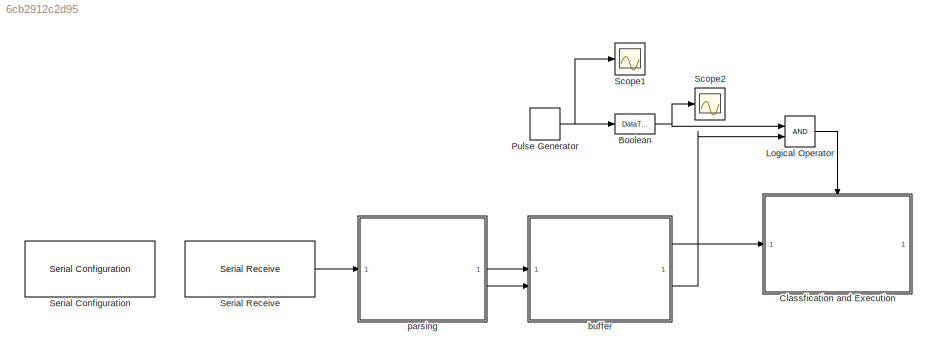
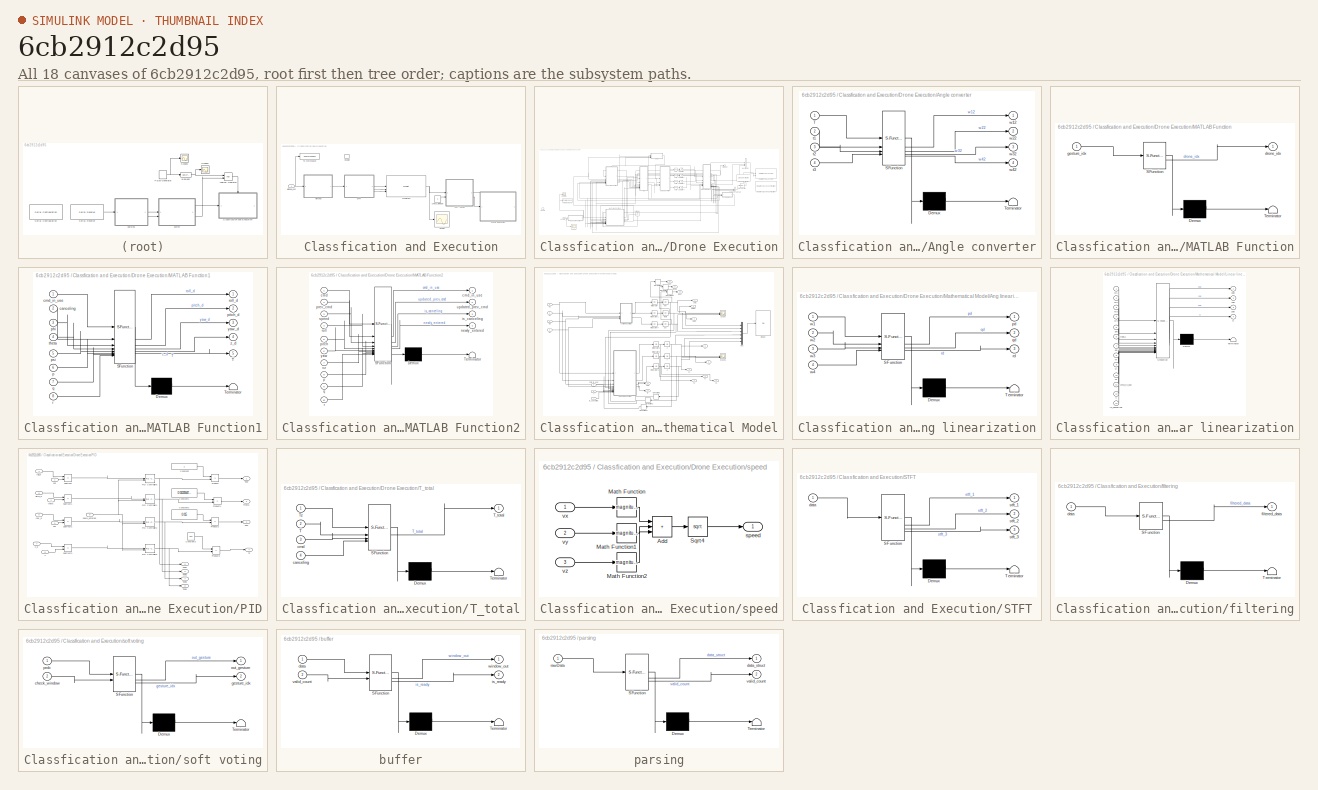
[diagram: thumbnail index - all 18 canvases of the model, root first then tree order]
MODEL slx_6cb2912c2d95
KIND model
CONFIG AbsTol = auto
CONFIG EnableMultiTasking = off
CONFIG FixedStep = 0.001
CONFIG MaxStep = auto
CONFIG MinStep = auto
CONFIG RelTol = 1e-3
CONFIG SampleTimeConstraint = Unconstrained
CONFIG SolverName = FixedStepAuto
CONFIG StartTime = 0.0
CONFIG StopTime = inf
BLOCK [DataTypeConversion] Boolean
  NameLocation = top
  OutDataTypeStr = boolean
  RndMeth = Floor
  SaturateOnIntegerOverflow = off
BLOCK [SubSystem] Classfication and Execution
  TreatAsAtomicUnit = on
BLOCK [SubSystem] Classfication and Execution/Drone Execution
  TreatAsAtomicUnit = on
BLOCK [SubSystem] Classfication and Execution/Drone Execution/Angle converter
  ErrorFcn = Stateflow.Translate.translate
  PermitHierarchicalResolution = ExplicitOnly
  SFBlockType = MATLAB Function
  TreatAsAtomicUnit = on
BLOCK [Demux] Classfication and Execution/Drone Execution/Angle converter/ Demux 
  Outputs = 1
BLOCK [S-Function] Classfication and Execution/Drone Execution/Angle converter/ SFunction 
  EnableBusSupport = off
  FunctionName = sf_sfun
  PortCounts = [4 5]
  SFcnIsStateOwnerBlock = off
  SFunctionDeploymentMode = off
  Tag = Stateflow S-Function 7
BLOCK [Terminator] Classfication and Execution/Drone Execution/Angle converter/ Terminator 
BLOCK [Inport] Classfication and Execution/Drone Execution/Angle converter/T
BLOCK [Inport] Classfication and Execution/Drone Execution/Angle converter/t1
  Port = 2
BLOCK [Inport] Classfication and Execution/Drone Execution/Angle converter/t2
  Port = 3
BLOCK [Inport] Classfication and Execution/Drone Execution/Angle converter/t3
  Port = 4
BLOCK [Outport] Classfication and Execution/Drone Execution/Angle converter/w12
BLOCK [Outport] Classfication and Execution/Drone Execution/Angle converter/w22
  Port = 2
BLOCK [Outport] Classfication and Execution/Drone Execution/Angle converter/w32
  Port = 3
BLOCK [Outport] Classfication and Execution/Drone Execution/Angle converter/w42
  Port = 4
BLOCK [BusCreator] Classfication and Execution/Drone Execution/Bus Creator
  DisplayOption = bar
  InheritFromInputs = on
  Inputs = 3
BLOCK [EnablePort] Classfication and Execution/Drone Execution/Enable
BLOCK [SubSystem] Classfication and Execution/Drone Execution/MATLAB Function
  ErrorFcn = Stateflow.Translate.translate
  PermitHierarchicalResolution = ExplicitOnly
  SFBlockType = MATLAB Function
  TreatAsAtomicUnit = on
BLOCK [Demux] Classfication and Execution/Drone Execution/MATLAB Function/ Demux 
  Outputs = 1
BLOCK [S-Function] Classfication and Execution/Drone Execution/MATLAB Function/ SFunction 
  EnableBusSupport = off
  FunctionName = sf_sfun
  PortCounts = [1 2]
  SFcnIsStateOwnerBlock = off
  SFunctionDeploymentMode = off
  Tag = Stateflow S-Function 8
BLOCK [Terminator] Classfication and Execution/Drone Execution/MATLAB Function/ Terminator 
BLOCK [Outport] Classfication and Execution/Drone Execution/MATLAB Function/drone_idx
BLOCK [Inport] Classfication and Execution/Drone Execution/MATLAB Function/gesture_idx
BLOCK [SubSystem] Classfication and Execution/Drone Execution/MATLAB Function1
  ErrorFcn = Stateflow.Translate.translate
  PermitHierarchicalResolution = ExplicitOnly
  SFBlockType = MATLAB Function
  TreatAsAtomicUnit = on
BLOCK [Demux] Classfication and Execution/Drone Execution/MATLAB Function1/ Demux 
  Outputs = 1
BLOCK [S-Function] Classfication and Execution/Drone Execution/MATLAB Function1/ SFunction 
  EnableBusSupport = off
  FunctionName = sf_sfun
  PortCounts = [8 6]
  SFcnIsStateOwnerBlock = off
  SFunctionDeploymentMode = off
  Tag = Stateflow S-Function 9
BLOCK [Terminator] Classfication and Execution/Drone Execution/MATLAB Function1/ Terminator 
BLOCK [Outport] Classfication and Execution/Drone Execution/MATLAB Function1/T
  Port = 5
BLOCK [Inport] Classfication and Execution/Drone Execution/MATLAB Function1/canceling
  Port = 2
BLOCK [Inport] Classfication and Execution/Drone Execution/MATLAB Function1/cmd_in_use
BLOCK [Inport] Classfication and Execution/Drone Execution/MATLAB Function1/p
  Port = 6
BLOCK [Inport] Classfication and Execution/Drone Execution/MATLAB Function1/phi
  Port = 3
BLOCK [Outport] Classfication and Execution/Drone Execution/MATLAB Function1/pitch_d
  Port = 2
BLOCK [Inport] Classfication and Execution/Drone Execution/MATLAB Function1/psi
  Port = 5
BLOCK [Inport] Classfication and Execution/Drone Execution/MATLAB Function1/q
  Port = 7
BLOCK [Inport] Classfication and Execution/Drone Execution/MATLAB Function1/r
  Port = 8
BLOCK [Outport] Classfication and Execution/Drone Execution/MATLAB Function1/roll_d
BLOCK [Inport] Classfication and Execution/Drone Execution/MATLAB Function1/theta
  Port = 4
BLOCK [Outport] Classfication and Execution/Drone Execution/MATLAB Function1/yaw_d
  Port = 3
BLOCK [Outport] Classfication and Execution/Drone Execution/MATLAB Function1/z_d
  Port = 4
BLOCK [SubSystem] Classfication and Execution/Drone Execution/MATLAB Function2
  ErrorFcn = Stateflow.Translate.translate
  PermitHierarchicalResolution = ExplicitOnly
  SFBlockType = MATLAB Function
  TreatAsAtomicUnit = on
BLOCK [Demux] Classfication and Execution/Drone Execution/MATLAB Function2/ Demux 
  Outputs = 1
BLOCK [S-Function] Classfication and Execution/Drone Execution/MATLAB Function2/ SFunction 
  EnableBusSupport = off
  FunctionName = sf_sfun
  PortCounts = [10 5]
  SFcnIsStateOwnerBlock = off
  SFunctionDeploymentMode = off
  Tag = Stateflow S-Function 10
BLOCK [Terminator] Classfication and Execution/Drone Execution/MATLAB Function2/ Terminator 
BLOCK [Inport] Classfication and Execution/Drone Execution/MATLAB Function2/cmd
BLOCK [Outport] Classfication and Execution/Drone Execution/MATLAB Function2/cmd_in_use
BLOCK [Outport] Classfication and Execution/Drone Execution/MATLAB Function2/is_canceling
  Port = 3
BLOCK [Outport] Classfication and Execution/Drone Execution/MATLAB Function2/newly_entered
  Port = 4
BLOCK [Inport] Classfication and Execution/Drone Execution/MATLAB Function2/p
  Port = 8
BLOCK [Inport] Classfication and Execution/Drone Execution/MATLAB Function2/pitch
  Port = 5
BLOCK [Inport] Classfication and Execution/Drone Execution/MATLAB Function2/prev_cmd
  Port = 2
BLOCK [Inport] Classfication and Execution/Drone Execution/MATLAB Function2/q
  Port = 9
BLOCK [Inport] Classfication and Execution/Drone Execution/MATLAB Function2/r
  Port = 10
BLOCK [Inport] Classfication and Execution/Drone Execution/MATLAB Function2/roll
  Port = 4
BLOCK [Inport] Classfication and Execution/Drone Execution/MATLAB Function2/speed
  Port = 3
BLOCK [Outport] Classfication and Execution/Drone Execution/MATLAB Function2/updated_prev_cmd
  Port = 2
BLOCK [Inport] Classfication and Execution/Drone Execution/MATLAB Function2/vz
  Port = 7
BLOCK [Inport] Classfication and Execution/Drone Execution/MATLAB Function2/yaw
  Port = 6
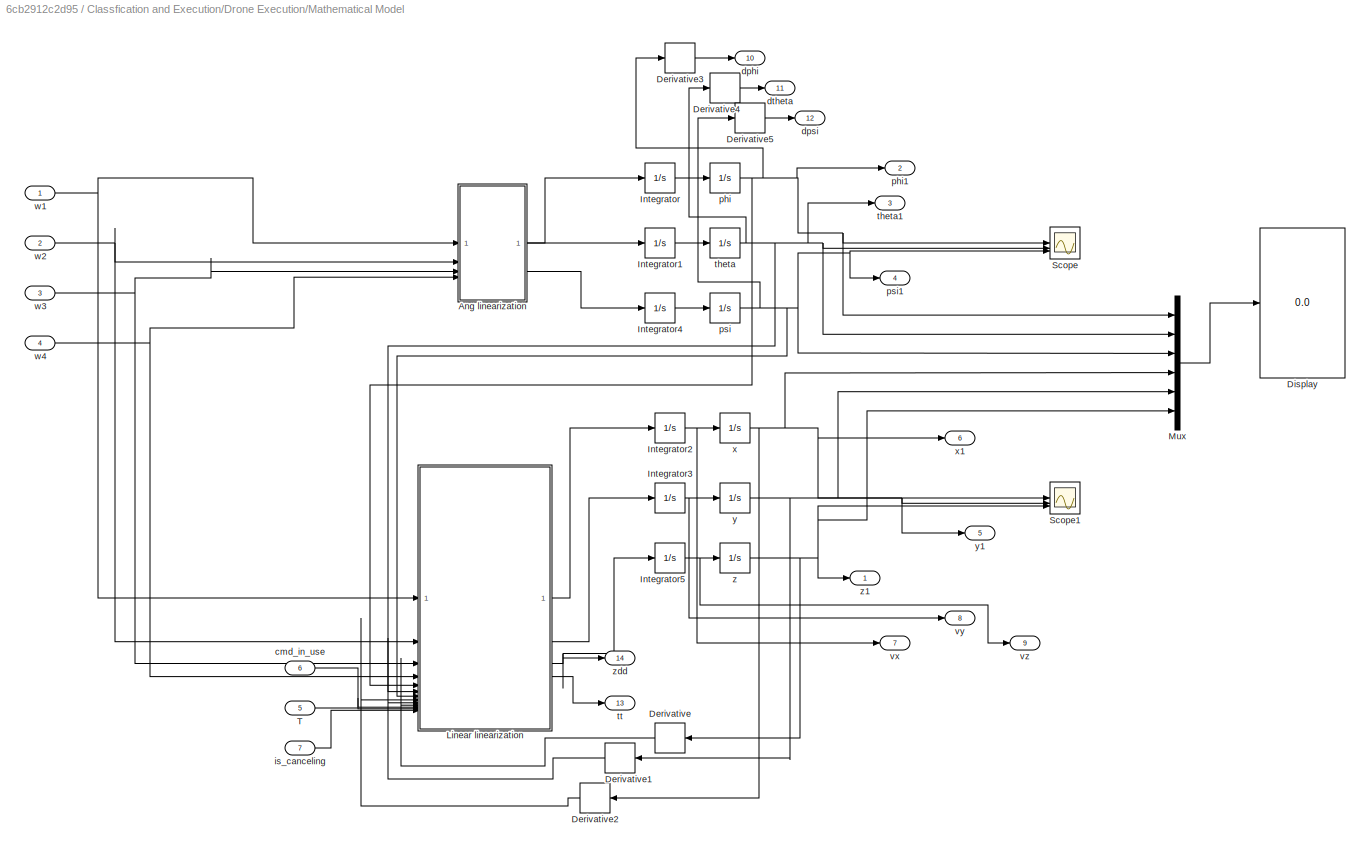
BLOCK [SubSystem] Classfication and Execution/Drone Execution/Mathematical Model
BLOCK [SubSystem] Classfication and Execution/Drone Execution/Mathematical Model/Ang linearization
  ErrorFcn = Stateflow.Translate.translate
  PermitHierarchicalResolution = ExplicitOnly
  SFBlockType = MATLAB Function
  TreatAsAtomicUnit = on
BLOCK [Demux] Classfication and Execution/Drone Execution/Mathematical Model/Ang linearization/ Demux 
  Outputs = 1
BLOCK [S-Function] Classfication and Execution/Drone Execution/Mathematical Model/Ang linearization/ SFunction 
  EnableBusSupport = off
  FunctionName = sf_sfun
  PortCounts = [4 4]
  SFcnIsStateOwnerBlock = off
  SFunctionDeploymentMode = off
  Tag = Stateflow S-Function 13
BLOCK [Terminator] Classfication and Execution/Drone Execution/Mathematical Model/Ang linearization/ Terminator 
BLOCK [Outport] Classfication and Execution/Drone Execution/Mathematical Model/Ang linearization/pd
BLOCK [Outport] Classfication and Execution/Drone Execution/Mathematical Model/Ang linearization/qd
  Port = 2
BLOCK [Outport] Classfication and Execution/Drone Execution/Mathematical Model/Ang linearization/rd
  Port = 3
BLOCK [Inport] Classfication and Execution/Drone Execution/Mathematical Model/Ang linearization/w1
BLOCK [Inport] Classfication and Execution/Drone Execution/Mathematical Model/Ang linearization/w2
  Port = 2
BLOCK [Inport] Classfication and Execution/Drone Execution/Mathematical Model/Ang linearization/w3
  Port = 3
BLOCK [Inport] Classfication and Execution/Drone Execution/Mathematical Model/Ang linearization/w4
  Port = 4
BLOCK [Derivative] Classfication and Execution/Drone Execution/Mathematical Model/Derivative
  CoefficientInTFapproximation = 0.01
BLOCK [Derivative] Classfication and Execution/Drone Execution/Mathematical Model/Derivative1
  CoefficientInTFapproximation = 0.01
BLOCK [Derivative] Classfication and Execution/Drone Execution/Mathematical Model/Derivative2
  CoefficientInTFapproximation = 0.01
BLOCK [Derivative] Classfication and Execution/Drone Execution/Mathematical Model/Derivative3
BLOCK [Derivative] Classfication and Execution/Drone Execution/Mathematical Model/Derivative4
BLOCK [Derivative] Classfication and Execution/Drone Execution/Mathematical Model/Derivative5
BLOCK [Display] Classfication and Execution/Drone Execution/Mathematical Model/Display
  Decimation = 1
BLOCK [Integrator] Classfication and Execution/Drone Execution/Mathematical Model/Integrator
BLOCK [Integrator] Classfication and Execution/Drone Execution/Mathematical Model/Integrator1
BLOCK [Integrator] Classfication and Execution/Drone Execution/Mathematical Model/Integrator2
BLOCK [Integrator] Classfication and Execution/Drone Execution/Mathematical Model/Integrator3
BLOCK [Integrator] Classfication and Execution/Drone Execution/Mathematical Model/Integrator4
BLOCK [Integrator] Classfication and Execution/Drone Execution/Mathematical Model/Integrator5
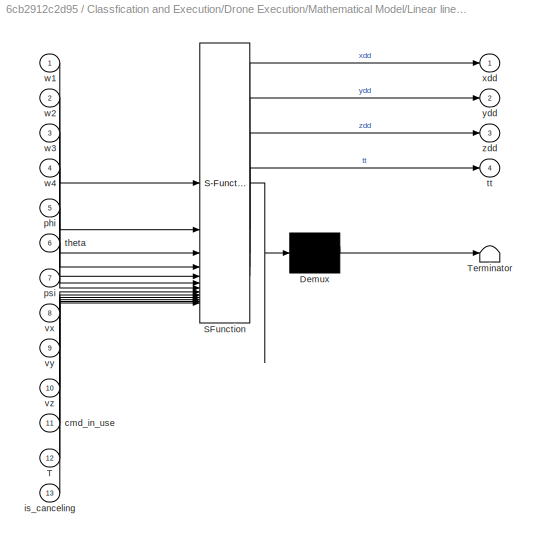
BLOCK [SubSystem] Classfication and Execution/Drone Execution/Mathematical Model/Linear linearization
  ErrorFcn = Stateflow.Translate.translate
  PermitHierarchicalResolution = ExplicitOnly
  SFBlockType = MATLAB Function
  TreatAsAtomicUnit = on
BLOCK [Demux] Classfication and Execution/Drone Execution/Mathematical Model/Linear linearization/ Demux 
  Outputs = 1
BLOCK [S-Function] Classfication and Execution/Drone Execution/Mathematical Model/Linear linearization/ SFunction 
  EnableBusSupport = off
  FunctionName = sf_sfun
  PortCounts = [13 5]
  SFcnIsStateOwnerBlock = off
  SFunctionDeploymentMode = off
  Tag = Stateflow S-Function 14
BLOCK [Terminator] Classfication and Execution/Drone Execution/Mathematical Model/Linear linearization/ Terminator 
BLOCK [Inport] Classfication and Execution/Drone Execution/Mathematical Model/Linear linearization/T
  Port = 12
BLOCK [Inport] Classfication and Execution/Drone Execution/Mathematical Model/Linear linearization/cmd_in_use
  Port = 11
BLOCK [Inport] Classfication and Execution/Drone Execution/Mathematical Model/Linear linearization/is_canceling
  Port = 13
BLOCK [Inport] Classfication and Execution/Drone Execution/Mathematical Model/Linear linearization/phi
  Port = 5
BLOCK [Inport] Classfication and Execution/Drone Execution/Mathematical Model/Linear linearization/psi
  Port = 7
BLOCK [Inport] Classfication and Execution/Drone Execution/Mathematical Model/Linear linearization/theta
  Port = 6
BLOCK [Outport] Classfication and Execution/Drone Execution/Mathematical Model/Linear linearization/tt
  Port = 4
BLOCK [Inport] Classfication and Execution/Drone Execution/Mathematical Model/Linear linearization/vx
  Port = 8
BLOCK [Inport] Classfication and Execution/Drone Execution/Mathematical Model/Linear linearization/vy
  Port = 9
BLOCK [Inport] Classfication and Execution/Drone Execution/Mathematical Model/Linear linearization/vz
  Port = 10
BLOCK [Inport] Classfication and Execution/Drone Execution/Mathematical Model/Linear linearization/w1
BLOCK [Inport] Classfication and Execution/Drone Execution/Mathematical Model/Linear linearization/w2
  Port = 2
BLOCK [Inport] Classfication and Execution/Drone Execution/Mathematical Model/Linear linearization/w3
  Port = 3
BLOCK [Inport] Classfication and Execution/Drone Execution/Mathematical Model/Linear linearization/w4
  Port = 4
BLOCK [Outport] Classfication and Execution/Drone Execution/Mathematical Model/Linear linearization/xdd
BLOCK [Outport] Classfication and Execution/Drone Execution/Mathematical Model/Linear linearization/ydd
  Port = 2
BLOCK [Outport] Classfication and Execution/Drone Execution/Mathematical Model/Linear linearization/zdd
  Port = 3
BLOCK [Mux] Classfication and Execution/Drone Execution/Mathematical Model/Mux
  DisplayOption = bar
  Inputs = 6
BLOCK [Scope] Classfication and Execution/Drone Execution/Mathematical Model/Scope
  Floating = off
  NumInputPorts = 3
  ScopeSpecificationString = Simulink.scopes.TimeScopeBlockCfg('CurrentConfiguration', extmgr.ConfigurationSet(extmgr.Configuration('Core','General UI',true,'DisplayFullSourceName',false,'ShowMainToolbar',true),extmgr.Configuration('Sources','WiredSimulink',true,'DataLogging',false,'DataLoggingVariableName','ScopeData','DataLoggingLimitDataPoints',false,'DataLoggingMaxPoints','5000','DataLoggingDecimateData',false,'DataLoggin...<+1981ch>
BLOCK [Scope] Classfication and Execution/Drone Execution/Mathematical Model/Scope1
  Floating = off
  NumInputPorts = 3
  ScopeSpecificationString = Simulink.scopes.TimeScopeBlockCfg('CurrentConfiguration', extmgr.ConfigurationSet(extmgr.Configuration('Core','General UI',true,'DisplayFullSourceName',false,'ShowMainToolbar',true),extmgr.Configuration('Sources','WiredSimulink',true,'DataLogging',false,'DataLoggingVariableName','ScopeData1','DataLoggingLimitDataPoints',false,'DataLoggingMaxPoints','5000','DataLoggingDecimateData',false,'DataLoggi...<+2028ch>
BLOCK [Inport] Classfication and Execution/Drone Execution/Mathematical Model/T
  Port = 5
BLOCK [Inport] Classfication and Execution/Drone Execution/Mathematical Model/cmd_in_use
  Port = 6
BLOCK [Outport] Classfication and Execution/Drone Execution/Mathematical Model/dphi
  Port = 10
BLOCK [Outport] Classfication and Execution/Drone Execution/Mathematical Model/dpsi
  Port = 12
BLOCK [Outport] Classfication and Execution/Drone Execution/Mathematical Model/dtheta
  Port = 11
BLOCK [Inport] Classfication and Execution/Drone Execution/Mathematical Model/is_canceling
  Port = 7
BLOCK [Integrator] Classfication and Execution/Drone Execution/Mathematical Model/phi
BLOCK [Outport] Classfication and Execution/Drone Execution/Mathematical Model/phi1
  Port = 2
BLOCK [Integrator] Classfication and Execution/Drone Execution/Mathematical Model/psi
BLOCK [Outport] Classfication and Execution/Drone Execution/Mathematical Model/psi1
  Port = 4
BLOCK [Integrator] Classfication and Execution/Drone Execution/Mathematical Model/theta
BLOCK [Outport] Classfication and Execution/Drone Execution/Mathematical Model/theta1
  Port = 3
BLOCK [Outport] Classfication and Execution/Drone Execution/Mathematical Model/tt
  Port = 13
BLOCK [Outport] Classfication and Execution/Drone Execution/Mathematical Model/vx
  Port = 7
BLOCK [Outport] Classfication and Execution/Drone Execution/Mathematical Model/vy
  Port = 8
BLOCK [Outport] Classfication and Execution/Drone Execution/Mathematical Model/vz
  Port = 9
BLOCK [Inport] Classfication and Execution/Drone Execution/Mathematical Model/w1
BLOCK [Inport] Classfication and Execution/Drone Execution/Mathematical Model/w2
  Port = 2
BLOCK [Inport] Classfication and Execution/Drone Execution/Mathematical Model/w3
  Port = 3
BLOCK [Inport] Classfication and Execution/Drone Execution/Mathematical Model/w4
  Port = 4
BLOCK [Integrator] Classfication and Execution/Drone Execution/Mathematical Model/x
BLOCK [Outport] Classfication and Execution/Drone Execution/Mathematical Model/x1
  Port = 6
BLOCK [Integrator] Classfication and Execution/Drone Execution/Mathematical Model/y
BLOCK [Outport] Classfication and Execution/Drone Execution/Mathematical Model/y1
  Port = 5
BLOCK [Integrator] Classfication and Execution/Drone Execution/Mathematical Model/z
BLOCK [Outport] Classfication and Execution/Drone Execution/Mathematical Model/z1
BLOCK [Outport] Classfication and Execution/Drone Execution/Mathematical Model/zdd
  Port = 14
BLOCK [SubSystem] Classfication and Execution/Drone Execution/PID
BLOCK [Constant] Classfication and Execution/Drone Execution/PID/Constant
BLOCK [Constant] Classfication and Execution/Drone Execution/PID/Constant1
  Value = 0.01023564759
BLOCK [Constant] Classfication and Execution/Drone Execution/PID/Constant2
  Value = 0.015
BLOCK [Constant] Classfication and Execution/Drone Execution/PID/Constant3
  Value = 0.01
BLOCK [Reference] Classfication and Execution/Drone Execution/PID/PID Controller1  REF=slpidlib/PID Controller
  SourceBlock = slpidlib/PID Controller
  SourceType = PID 1dof
BLOCK [Reference] Classfication and Execution/Drone Execution/PID/PID Controller2  REF=slpidlib/PID Controller
  SourceBlock = slpidlib/PID Controller
  SourceType = PID 1dof
BLOCK [Reference] Classfication and Execution/Drone Execution/PID/PID Controller5  REF=slpidlib/PID Controller
  SourceBlock = slpidlib/PID Controller
  SourceType = PID 1dof
BLOCK [Reference] Classfication and Execution/Drone Execution/PID/PID Controller6  REF=slpidlib/PID Controller
  SourceBlock = slpidlib/PID Controller
  SourceType = PID 1dof
BLOCK [Product] Classfication and Execution/Drone Execution/PID/Product
BLOCK [Product] Classfication and Execution/Drone Execution/PID/Product1
BLOCK [Product] Classfication and Execution/Drone Execution/PID/Product2
BLOCK [Product] Classfication and Execution/Drone Execution/PID/Product3
BLOCK [Sum] Classfication and Execution/Drone Execution/PID/Subtract
  IconShape = rectangular
  Inputs = +-
BLOCK [Sum] Classfication and Execution/Drone Execution/PID/Subtract1
  IconShape = rectangular
  Inputs = +-
BLOCK [Sum] Classfication and Execution/Drone Execution/PID/Subtract2
  IconShape = rectangular
  Inputs = +-
BLOCK [Sum] Classfication and Execution/Drone Execution/PID/Subtract3
  IconShape = rectangular
  Inputs = +-
BLOCK [Outport] Classfication and Execution/Drone Execution/PID/Tphi
BLOCK [Outport] Classfication and Execution/Drone Execution/PID/Tphi1
  Port = 5
BLOCK [Outport] Classfication and Execution/Drone Execution/PID/Tphi2
  Port = 6
BLOCK [Outport] Classfication and Execution/Drone Execution/PID/Tphi3
  Port = 7
BLOCK [Outport] Classfication and Execution/Drone Execution/PID/Tphi4
  Port = 8
BLOCK [Outport] Classfication and Execution/Drone Execution/PID/Tpsi
  Port = 3
BLOCK [Outport] Classfication and Execution/Drone Execution/PID/Ttheta
  Port = 2
BLOCK [Outport] Classfication and Execution/Drone Execution/PID/Tz
  Port = 4
BLOCK [Inport] Classfication and Execution/Drone Execution/PID/newly_entered
  Port = 9
BLOCK [Inport] Classfication and Execution/Drone Execution/PID/phi
BLOCK [Inport] Classfication and Execution/Drone Execution/PID/pitch_d
  Port = 5
BLOCK [Inport] Classfication and Execution/Drone Execution/PID/psi
  Port = 3
BLOCK [Inport] Classfication and Execution/Drone Execution/PID/roll_d
  Port = 4
BLOCK [Inport] Classfication and Execution/Drone Execution/PID/theta
  Port = 2
BLOCK [Inport] Classfication and Execution/Drone Execution/PID/yaw_d
  Port = 6
BLOCK [Inport] Classfication and Execution/Drone Execution/PID/z
  Port = 8
BLOCK [Inport] Classfication and Execution/Drone Execution/PID/z_d
  Port = 7
BLOCK [RateTransition] Classfication and Execution/Drone Execution/Rate Transition
  Deterministic = off
  OutPortSampleTime = 0.01
BLOCK [Saturate] Classfication and Execution/Drone Execution/Saturation
  LowerLimit = 0
  UpperLimit = 8000
BLOCK [Saturate] Classfication and Execution/Drone Execution/Saturation1
  LowerLimit = 0
  UpperLimit = 8000
BLOCK [Saturate] Classfication and Execution/Drone Execution/Saturation2
  LowerLimit = 0
  UpperLimit = 8000
BLOCK [Saturate] Classfication and Execution/Drone Execution/Saturation4
  LowerLimit = 0
  UpperLimit = 8000
BLOCK [Scope] Classfication and Execution/Drone Execution/Scope
  Floating = off
  NumInputPorts = 1
  ScopeSpecificationString = Simulink.scopes.TimeScopeBlockCfg('CurrentConfiguration', extmgr.ConfigurationSet(extmgr.Configuration('Core','General UI',true),extmgr.Configuration('Core','Source UI',true),extmgr.Configuration('Sources','WiredSimulink',true,'DataLoggingVariableName','ScopeData1'),extmgr.Configuration('Visuals','Time Domain',true),extmgr.Configuration('Tools','Plot Navigation',true),extmgr.Configuration('Tools',...<+40ch>
BLOCK [Scope] Classfication and Execution/Drone Execution/Scope1
  Floating = off
  NumInputPorts = 1
  ScopeSpecificationString = Simulink.scopes.TimeScopeBlockCfg('CurrentConfiguration', extmgr.ConfigurationSet(extmgr.Configuration('Core','General UI',true,'DisplayFullSourceName',false,'ShowMainToolbar',true),extmgr.Configuration('Sources','WiredSimulink',true,'DataLogging',false,'DataLoggingVariableName','ScopeData1','DataLoggingLimitDataPoints',false,'DataLoggingMaxPoints','5000','DataLoggingDecimateData',false,'DataLoggi...<+1978ch>
BLOCK [SignalSpecification] Classfication and Execution/Drone Execution/Signal Specification
  Dimensions = [1 3]
  NameLocation = right
  OutDataTypeStr = double
  SampleTime = 0.01
BLOCK [Reference] Classfication and Execution/Drone Execution/Simulation 3D Scene Configuration  REF=sim3dlib/Simulation 3D Scene Configuration
  LibrarySourceBlock = uavsim3dlib/Simulation 3D Scene Configuration
  Priority = 0
  SourceBlock = sim3dlib/Simulation 3D Scene Configuration
  SourceType = Simulation 3D Scene Configuration
BLOCK [Reference] Classfication and Execution/Drone Execution/Simulation 3D UAV Vehicle  REF=uavsim3dlib/Simulation 3D UAV Vehicle
  Priority = -1
  SourceBlock = uavsim3dlib/Simulation 3D UAV Vehicle
  SourceType = Simulation 3D UAV Vehicle
BLOCK [Sqrt] Classfication and Execution/Drone Execution/Sqrt
BLOCK [Sqrt] Classfication and Execution/Drone Execution/Sqrt1
BLOCK [Sqrt] Classfication and Execution/Drone Execution/Sqrt2
BLOCK [Sqrt] Classfication and Execution/Drone Execution/Sqrt3
BLOCK [SubSystem] Classfication and Execution/Drone Execution/T_total
  ErrorFcn = Stateflow.Translate.translate
  PermitHierarchicalResolution = ExplicitOnly
  SFBlockType = MATLAB Function
  TreatAsAtomicUnit = on
BLOCK [Demux] Classfication and Execution/Drone Execution/T_total/ Demux 
  Outputs = 1
BLOCK [S-Function] Classfication and Execution/Drone Execution/T_total/ SFunction 
  EnableBusSupport = off
  FunctionName = sf_sfun
  PortCounts = [4 2]
  SFcnIsStateOwnerBlock = off
  SFunctionDeploymentMode = off
  Tag = Stateflow S-Function 12
BLOCK [Terminator] Classfication and Execution/Drone Execution/T_total/ Terminator 
BLOCK [Inport] Classfication and Execution/Drone Execution/T_total/T
  Port = 2
BLOCK [Outport] Classfication and Execution/Drone Execution/T_total/T_total
BLOCK [Inport] Classfication and Execution/Drone Execution/T_total/Tz
BLOCK [Inport] Classfication and Execution/Drone Execution/T_total/canceling
  Port = 4
BLOCK [Inport] Classfication and Execution/Drone Execution/T_total/cmd
  Port = 3
BLOCK [Terminator] Classfication and Execution/Drone Execution/Terminator
BLOCK [ToWorkspace] Classfication and Execution/Drone Execution/To Workspace1
  FixptAsFi = on
  MaxDataPoints = inf
  SampleTime = -1
  Save2DSignal = 2-D array (concatenate along first dimension)
  SaveFormat = Timeseries
  VariableName = drone_idx
BLOCK [UnitDelay] Classfication and Execution/Drone Execution/Unit Delay
  HasFrameUpgradeWarning = on
  NameLocation = left
  SampleTime = -1
BLOCK [Concatenate] Classfication and Execution/Drone Execution/Vector Concatenate
  NumInputs = 3
BLOCK [Inport] Classfication and Execution/Drone Execution/gesture_idx
BLOCK [SubSystem] Classfication and Execution/Drone Execution/speed
BLOCK [Sum] Classfication and Execution/Drone Execution/speed/Add
  IconShape = rectangular
  Inputs = +++
BLOCK [Math] Classfication and Execution/Drone Execution/speed/Math Function
  Operator = magnitude^2
BLOCK [Math] Classfication and Execution/Drone Execution/speed/Math Function1
  Operator = magnitude^2
BLOCK [Math] Classfication and Execution/Drone Execution/speed/Math Function2
  Operator = magnitude^2
BLOCK [Sqrt] Classfication and Execution/Drone Execution/speed/Sqrt4
BLOCK [Outport] Classfication and Execution/Drone Execution/speed/speed
BLOCK [Inport] Classfication and Execution/Drone Execution/speed/vx
BLOCK [Inport] Classfication and Execution/Drone Execution/speed/vy
  Port = 2
BLOCK [Inport] Classfication and Execution/Drone Execution/speed/vz
  Port = 3
BLOCK [EnablePort] Classfication and Execution/Enable
BLOCK [Reference] Classfication and Execution/Prediction  REF=deeplib/Predict
  SourceBlock = deeplib/Predict
  SourceType = Predict
BLOCK [SubSystem] Classfication and Execution/STFT
  ErrorFcn = Stateflow.Translate.translate
  PermitHierarchicalResolution = ExplicitOnly
  SFBlockType = MATLAB Function
  TreatAsAtomicUnit = on
BLOCK [Demux] Classfication and Execution/STFT/ Demux 
  Outputs = 1
BLOCK [S-Function] Classfication and Execution/STFT/ SFunction 
  EnableBusSupport = off
  FunctionName = sf_sfun
  PortCounts = [1 4]
  SFcnIsStateOwnerBlock = off
  SFunctionDeploymentMode = off
  Tag = Stateflow S-Function 3
BLOCK [Terminator] Classfication and Execution/STFT/ Terminator 
BLOCK [Inport] Classfication and Execution/STFT/data
BLOCK [Outport] Classfication and Execution/STFT/stft_1
BLOCK [Outport] Classfication and Execution/STFT/stft_2
  Port = 2
BLOCK [Outport] Classfication and Execution/STFT/stft_3
  Port = 3
BLOCK [Scope] Classfication and Execution/Scope
  Floating = off
  NumInputPorts = 1
  ScopeSpecificationString = Simulink.scopes.TimeScopeBlockCfg('CurrentConfiguration', extmgr.ConfigurationSet(extmgr.Configuration('Core','General UI',true,'DisplayFullSourceName',false,'ShowMainToolbar',true),extmgr.Configuration('Sources','WiredSimulink',true,'DataLogging',false,'DataLoggingVariableName','ScopeData','DataLoggingLimitDataPoints',false,'DataLoggingMaxPoints','5000','DataLoggingDecimateData',false,'DataLoggin...<+1990ch>
BLOCK [ToWorkspace] Classfication and Execution/To Workspace
  FixptAsFi = on
  MaxDataPoints = inf
  SampleTime = -1
  VariableName = one_window
BLOCK [Constant] Classfication and Execution/check_window
  Value = 3
BLOCK [SubSystem] Classfication and Execution/filtering
  ErrorFcn = Stateflow.Translate.translate
  PermitHierarchicalResolution = ExplicitOnly
  SFBlockType = MATLAB Function
  TreatAsAtomicUnit = on
BLOCK [Demux] Classfication and Execution/filtering/ Demux 
  Outputs = 1
BLOCK [S-Function] Classfication and Execution/filtering/ SFunction 
  EnableBusSupport = off
  FunctionName = sf_sfun
  PortCounts = [1 2]
  SFcnIsStateOwnerBlock = off
  SFunctionDeploymentMode = off
  Tag = Stateflow S-Function 1
BLOCK [Terminator] Classfication and Execution/filtering/ Terminator 
BLOCK [Inport] Classfication and Execution/filtering/data
BLOCK [Outport] Classfication and Execution/filtering/filtered_data
BLOCK [SubSystem] Classfication and Execution/soft voting
  ErrorFcn = Stateflow.Translate.translate
  PermitHierarchicalResolution = ExplicitOnly
  SFBlockType = MATLAB Function
  TreatAsAtomicUnit = on
BLOCK [Demux] Classfication and Execution/soft voting/ Demux 
  Outputs = 1
BLOCK [S-Function] Classfication and Execution/soft voting/ SFunction 
  EnableBusSupport = off
  FunctionName = sf_sfun
  PortCounts = [2 3]
  SFcnIsStateOwnerBlock = off
  SFunctionDeploymentMode = off
  Tag = Stateflow S-Function 5
BLOCK [Terminator] Classfication and Execution/soft voting/ Terminator 
BLOCK [Inport] Classfication and Execution/soft voting/check_window
  Port = 2
BLOCK [Outport] Classfication and Execution/soft voting/gesture_idx
  Port = 2
BLOCK [Outport] Classfication and Execution/soft voting/out_gesture
BLOCK [Inport] Classfication and Execution/soft voting/prob
BLOCK [Inport] Classfication and Execution/window_out
BLOCK [Logic] Logical Operator
  AllPortsSameDT = off
  OutDataTypeStr = boolean
BLOCK [DiscretePulseGenerator] Pulse Generator
  Period = 100
  SampleTime = 0.001
BLOCK [Scope] Scope1
  Floating = off
  NumInputPorts = 1
  ScopeSpecificationString = Simulink.scopes.TimeScopeBlockCfg('CurrentConfiguration', extmgr.ConfigurationSet(extmgr.Configuration('Core','General UI',true,'DisplayFullSourceName',false,'ShowMainToolbar',true),extmgr.Configuration('Sources','WiredSimulink',true,'DataLogging',false,'DataLoggingVariableName','ScopeData1','DataLoggingLimitDataPoints',false,'DataLoggingMaxPoints','5000','DataLoggingDecimateData',false,'DataLoggi...<+1998ch>
BLOCK [Scope] Scope2
  Floating = off
  NumInputPorts = 1
  ScopeSpecificationString = Simulink.scopes.TimeScopeBlockCfg('CurrentConfiguration', extmgr.ConfigurationSet(extmgr.Configuration('Core','General UI',true,'DisplayFullSourceName',false,'ShowMainToolbar',true),extmgr.Configuration('Sources','WiredSimulink',true,'DataLogging',false,'DataLoggingVariableName','ScopeData2','DataLoggingLimitDataPoints',false,'DataLoggingMaxPoints','5000','DataLoggingDecimateData',false,'DataLoggi...<+1998ch>
BLOCK [Reference] Serial Configuration  REF=instrumentseriallib/Serial Configuration
  LibrarySourceBlock = instrumentlib/Serial Configuration
  Priority = -200000
  SourceBlock = instrumentseriallib/Serial Configuration
  SourceType = system.SerialConfiguration
BLOCK [Reference] Serial Receive  REF=instrumentseriallib/Serial Receive
  LibrarySourceBlock = instrumentlib/Serial Receive
  Priority = 1
  SourceBlock = instrumentseriallib/Serial Receive
  SourceType = system.SerialReceive
BLOCK [SubSystem] buffer
  ErrorFcn = Stateflow.Translate.translate
  PermitHierarchicalResolution = ExplicitOnly
  SFBlockType = MATLAB Function
  TreatAsAtomicUnit = on
BLOCK [Demux] buffer/ Demux 
  Outputs = 1
BLOCK [S-Function] buffer/ SFunction 
  EnableBusSupport = off
  FunctionName = sf_sfun
  PortCounts = [2 3]
  SFcnIsStateOwnerBlock = off
  SFunctionDeploymentMode = off
  Tag = Stateflow S-Function 6
BLOCK [Terminator] buffer/ Terminator 
BLOCK [Inport] buffer/data
BLOCK [Outport] buffer/is_ready
  Port = 2
BLOCK [Inport] buffer/valid_count
  Port = 2
BLOCK [Outport] buffer/window_out
BLOCK [SubSystem] parsing
  ErrorFcn = Stateflow.Translate.translate
  PermitHierarchicalResolution = ExplicitOnly
  SFBlockType = MATLAB Function
  SystemSampleTime = 0.001
  TreatAsAtomicUnit = on
BLOCK [Demux] parsing/ Demux 
  Outputs = 1
BLOCK [S-Function] parsing/ SFunction 
  EnableBusSupport = off
  FunctionName = sf_sfun
  PortCounts = [1 3]
  SFcnIsStateOwnerBlock = off
  SFunctionDeploymentMode = off
  Tag = Stateflow S-Function 2
BLOCK [Terminator] parsing/ Terminator 
BLOCK [Outport] parsing/data_struct
BLOCK [Inport] parsing/rawData
BLOCK [Outport] parsing/valid_count
  Port = 2
NET Boolean:1 -> Logical Operator:1, Scope2:1
LINE Classfication and Execution/Drone Execution/Angle converter:1 -> Classfication and Execution/Drone Execution/Sqrt:1
LINE Classfication and Execution/Drone Execution/Angle converter:2 -> Classfication and Execution/Drone Execution/Sqrt1:1
LINE Classfication and Execution/Drone Execution/Angle converter:3 -> Classfication and Execution/Drone Execution/Sqrt2:1
LINE Classfication and Execution/Drone Execution/Angle converter:4 -> Classfication and Execution/Drone Execution/Sqrt3:1
LINE Classfication and Execution/Drone Execution/Bus Creator:1 -> Classfication and Execution/Drone Execution/Simulation 3D UAV Vehicle:1
LINE Classfication and Execution/Drone Execution/MATLAB Function1:1 -> Classfication and Execution/Drone Execution/PID:4
LINE Classfication and Execution/Drone Execution/MATLAB Function1:2 -> Classfication and Execution/Drone Execution/PID:5
LINE Classfication and Execution/Drone Execution/MATLAB Function1:3 -> Classfication and Execution/Drone Execution/PID:6
LINE Classfication and Execution/Drone Execution/MATLAB Function1:4 -> Classfication and Execution/Drone Execution/PID:7
LINE Classfication and Execution/Drone Execution/MATLAB Function1:5 -> Classfication and Execution/Drone Execution/T_total:2
NET Classfication and Execution/Drone Execution/MATLAB Function2:1 -> Classfication and Execution/Drone Execution/MATLAB Function1:1, Classfication and Execution/Drone Execution/Mathematical Model:6, Classfication and Execution/Drone Execution/T_total:3
LINE Classfication and Execution/Drone Execution/MATLAB Function2:2 -> Classfication and Execution/Drone Execution/Unit Delay:1
NET Classfication and Execution/Drone Execution/MATLAB Function2:3 -> Classfication and Execution/Drone Execution/MATLAB Function1:2, Classfication and Execution/Drone Execution/Mathematical Model:7, Classfication and Execution/Drone Execution/T_total:4
LINE Classfication and Execution/Drone Execution/MATLAB Function2:4 -> Classfication and Execution/Drone Execution/PID:9
NET Classfication and Execution/Drone Execution/MATLAB Function:1 -> Classfication and Execution/Drone Execution/MATLAB Function2:1, Classfication and Execution/Drone Execution/Scope1:1, Classfication and Execution/Drone Execution/To Workspace1:1
LINE Classfication and Execution/Drone Execution/Mathematical Model/Ang linearization:1 -> Classfication and Execution/Drone Execution/Mathematical Model/Integrator:1
LINE Classfication and Execution/Drone Execution/Mathematical Model/Ang linearization:2 -> Classfication and Execution/Drone Execution/Mathematical Model/Integrator1:1
LINE Classfication and Execution/Drone Execution/Mathematical Model/Ang linearization:3 -> Classfication and Execution/Drone Execution/Mathematical Model/Integrator4:1
LINE Classfication and Execution/Drone Execution/Mathematical Model/Derivative1:1 -> Classfication and Execution/Drone Execution/Mathematical Model/Linear linearization:9
LINE Classfication and Execution/Drone Execution/Mathematical Model/Derivative2:1 -> Classfication and Execution/Drone Execution/Mathematical Model/Linear linearization:8
LINE Classfication and Execution/Drone Execution/Mathematical Model/Derivative3:1 -> Classfication and Execution/Drone Execution/Mathematical Model/dphi:1
LINE Classfication and Execution/Drone Execution/Mathematical Model/Derivative4:1 -> Classfication and Execution/Drone Execution/Mathematical Model/dtheta:1
LINE Classfication and Execution/Drone Execution/Mathematical Model/Derivative5:1 -> Classfication and Execution/Drone Execution/Mathematical Model/dpsi:1
LINE Classfication and Execution/Drone Execution/Mathematical Model/Derivative:1 -> Classfication and Execution/Drone Execution/Mathematical Model/Linear linearization:10
LINE Classfication and Execution/Drone Execution/Mathematical Model/Integrator1:1 -> Classfication and Execution/Drone Execution/Mathematical Model/theta:1
NET Classfication and Execution/Drone Execution/Mathematical Model/Integrator2:1 -> Classfication and Execution/Drone Execution/Mathematical Model/vx:1, Classfication and Execution/Drone Execution/Mathematical Model/x:1
NET Classfication and Execution/Drone Execution/Mathematical Model/Integrator3:1 -> Classfication and Execution/Drone Execution/Mathematical Model/vy:1, Classfication and Execution/Drone Execution/Mathematical Model/y:1
LINE Classfication and Execution/Drone Execution/Mathematical Model/Integrator4:1 -> Classfication and Execution/Drone Execution/Mathematical Model/psi:1
NET Classfication and Execution/Drone Execution/Mathematical Model/Integrator5:1 -> Classfication and Execution/Drone Execution/Mathematical Model/vz:1, Classfication and Execution/Drone Execution/Mathematical Model/z:1
LINE Classfication and Execution/Drone Execution/Mathematical Model/Integrator:1 -> Classfication and Execution/Drone Execution/Mathematical Model/phi:1
LINE Classfication and Execution/Drone Execution/Mathematical Model/Linear linearization:1 -> Classfication and Execution/Drone Execution/Mathematical Model/Integrator2:1
LINE Classfication and Execution/Drone Execution/Mathematical Model/Linear linearization:2 -> Classfication and Execution/Drone Execution/Mathematical Model/Integrator3:1
NET Classfication and Execution/Drone Execution/Mathematical Model/Linear linearization:3 -> Classfication and Execution/Drone Execution/Mathematical Model/Integrator5:1, Classfication and Execution/Drone Execution/Mathematical Model/zdd:1
LINE Classfication and Execution/Drone Execution/Mathematical Model/Linear linearization:4 -> Classfication and Execution/Drone Execution/Mathematical Model/tt:1
LINE Classfication and Execution/Drone Execution/Mathematical Model/Mux:1 -> Classfication and Execution/Drone Execution/Mathematical Model/Display:1
LINE Classfication and Execution/Drone Execution/Mathematical Model/T:1 -> Classfication and Execution/Drone Execution/Mathematical Model/Linear linearization:12
LINE Classfication and Execution/Drone Execution/Mathematical Model/cmd_in_use:1 -> Classfication and Execution/Drone Execution/Mathematical Model/Linear linearization:11
LINE Classfication and Execution/Drone Execution/Mathematical Model/is_canceling:1 -> Classfication and Execution/Drone Execution/Mathematical Model/Linear linearization:13
NET Classfication and Execution/Drone Execution/Mathematical Model/phi:1 -> Classfication and Execution/Drone Execution/Mathematical Model/Derivative3:1, Classfication and Execution/Drone Execution/Mathematical Model/Linear linearization:5, Classfication and Execution/Drone Execution/Mathematical Model/Mux:1, Classfication and Execution/Drone Execution/Mathematical Model/Scope:1, Classfication and Execution/Drone Execution/Mathematical Model/phi1:1
NET Classfication and Execution/Drone Execution/Mathematical Model/psi:1 -> Classfication and Execution/Drone Execution/Mathematical Model/Derivative5:1, Classfication and Execution/Drone Execution/Mathematical Model/Linear linearization:7, Classfication and Execution/Drone Execution/Mathematical Model/Mux:3, Classfication and Execution/Drone Execution/Mathematical Model/Scope:3, Classfication and Execution/Drone Execution/Mathematical Model/psi1:1
NET Classfication and Execution/Drone Execution/Mathematical Model/theta:1 -> Classfication and Execution/Drone Execution/Mathematical Model/Derivative4:1, Classfication and Execution/Drone Execution/Mathematical Model/Linear linearization:6, Classfication and Execution/Drone Execution/Mathematical Model/Mux:2, Classfication and Execution/Drone Execution/Mathematical Model/Scope:2, Classfication and Execution/Drone Execution/Mathematical Model/theta1:1
NET Classfication and Execution/Drone Execution/Mathematical Model/w1:1 -> Classfication and Execution/Drone Execution/Mathematical Model/Ang linearization:1, Classfication and Execution/Drone Execution/Mathematical Model/Linear linearization:1
NET Classfication and Execution/Drone Execution/Mathematical Model/w2:1 -> Classfication and Execution/Drone Execution/Mathematical Model/Ang linearization:2, Classfication and Execution/Drone Execution/Mathematical Model/Linear linearization:2
NET Classfication and Execution/Drone Execution/Mathematical Model/w3:1 -> Classfication and Execution/Drone Execution/Mathematical Model/Ang linearization:3, Classfication and Execution/Drone Execution/Mathematical Model/Linear linearization:3
NET Classfication and Execution/Drone Execution/Mathematical Model/w4:1 -> Classfication and Execution/Drone Execution/Mathematical Model/Ang linearization:4, Classfication and Execution/Drone Execution/Mathematical Model/Linear linearization:4
NET Classfication and Execution/Drone Execution/Mathematical Model/x:1 -> Classfication and Execution/Drone Execution/Mathematical Model/Derivative2:1, Classfication and Execution/Drone Execution/Mathematical Model/Mux:4, Classfication and Execution/Drone Execution/Mathematical Model/Scope1:1, Classfication and Execution/Drone Execution/Mathematical Model/x1:1
NET Classfication and Execution/Drone Execution/Mathematical Model/y:1 -> Classfication and Execution/Drone Execution/Mathematical Model/Derivative1:1, Classfication and Execution/Drone Execution/Mathematical Model/Mux:5, Classfication and Execution/Drone Execution/Mathematical Model/Scope1:2, Classfication and Execution/Drone Execution/Mathematical Model/y1:1
NET Classfication and Execution/Drone Execution/Mathematical Model/z:1 -> Classfication and Execution/Drone Execution/Mathematical Model/Derivative:1, Classfication and Execution/Drone Execution/Mathematical Model/Mux:6, Classfication and Execution/Drone Execution/Mathematical Model/Scope1:3, Classfication and Execution/Drone Execution/Mathematical Model/z1:1
NET Classfication and Execution/Drone Execution/Mathematical Model:1 -> Classfication and Execution/Drone Execution/Bus Creator:3, Classfication and Execution/Drone Execution/PID:8, Classfication and Execution/Drone Execution/Terminator:1
NET Classfication and Execution/Drone Execution/Mathematical Model:10 -> Classfication and Execution/Drone Execution/MATLAB Function1:6, Classfication and Execution/Drone Execution/MATLAB Function2:8
NET Classfication and Execution/Drone Execution/Mathematical Model:11 -> Classfication and Execution/Drone Execution/MATLAB Function1:7, Classfication and Execution/Drone Execution/MATLAB Function2:9
NET Classfication and Execution/Drone Execution/Mathematical Model:12 -> Classfication and Execution/Drone Execution/MATLAB Function1:8, Classfication and Execution/Drone Execution/MATLAB Function2:10
NET Classfication and Execution/Drone Execution/Mathematical Model:2 -> Classfication and Execution/Drone Execution/MATLAB Function1:3, Classfication and Execution/Drone Execution/MATLAB Function2:4, Classfication and Execution/Drone Execution/PID:1, Classfication and Execution/Drone Execution/Vector Concatenate:3
NET Classfication and Execution/Drone Execution/Mathematical Model:3 -> Classfication and Execution/Drone Execution/MATLAB Function1:4, Classfication and Execution/Drone Execution/MATLAB Function2:5, Classfication and Execution/Drone Execution/PID:2, Classfication and Execution/Drone Execution/Vector Concatenate:2
NET Classfication and Execution/Drone Execution/Mathematical Model:4 -> Classfication and Execution/Drone Execution/MATLAB Function1:5, Classfication and Execution/Drone Execution/MATLAB Function2:6, Classfication and Execution/Drone Execution/PID:3, Classfication and Execution/Drone Execution/Vector Concatenate:1
LINE Classfication and Execution/Drone Execution/Mathematical Model:5 -> Classfication and Execution/Drone Execution/Bus Creator:2
LINE Classfication and Execution/Drone Execution/Mathematical Model:6 -> Classfication and Execution/Drone Execution/Bus Creator:1
LINE Classfication and Execution/Drone Execution/Mathematical Model:7 -> Classfication and Execution/Drone Execution/speed:1
LINE Classfication and Execution/Drone Execution/Mathematical Model:8 -> Classfication and Execution/Drone Execution/speed:2
NET Classfication and Execution/Drone Execution/Mathematical Model:9 -> Classfication and Execution/Drone Execution/MATLAB Function2:7, Classfication and Execution/Drone Execution/speed:3
LINE Classfication and Execution/Drone Execution/PID/Constant1:1 -> Classfication and Execution/Drone Execution/PID/Product1:1
LINE Classfication and Execution/Drone Execution/PID/Constant2:1 -> Classfication and Execution/Drone Execution/PID/Product2:1
LINE Classfication and Execution/Drone Execution/PID/Constant3:1 -> Classfication and Execution/Drone Execution/PID/Product3:1
LINE Classfication and Execution/Drone Execution/PID/Constant:1 -> Classfication and Execution/Drone Execution/PID/Product:1
NET Classfication and Execution/Drone Execution/PID/PID Controller1:1 -> Classfication and Execution/Drone Execution/PID/Product1:2, Classfication and Execution/Drone Execution/PID/Tphi2:1
NET Classfication and Execution/Drone Execution/PID/PID Controller2:1 -> Classfication and Execution/Drone Execution/PID/Product2:2, Classfication and Execution/Drone Execution/PID/Tphi3:1
NET Classfication and Execution/Drone Execution/PID/PID Controller5:1 -> Classfication and Execution/Drone Execution/PID/Product3:2, Classfication and Execution/Drone Execution/PID/Tphi4:1
NET Classfication and Execution/Drone Execution/PID/PID Controller6:1 -> Classfication and Execution/Drone Execution/PID/Product:2, Classfication and Execution/Drone Execution/PID/Tphi1:1
LINE Classfication and Execution/Drone Execution/PID/Product1:1 -> Classfication and Execution/Drone Execution/PID/Ttheta:1
LINE Classfication and Execution/Drone Execution/PID/Product2:1 -> Classfication and Execution/Drone Execution/PID/Tpsi:1
LINE Classfication and Execution/Drone Execution/PID/Product3:1 -> Classfication and Execution/Drone Execution/PID/Tz:1
LINE Classfication and Execution/Drone Execution/PID/Product:1 -> Classfication and Execution/Drone Execution/PID/Tphi:1
LINE Classfication and Execution/Drone Execution/PID/Subtract1:1 -> Classfication and Execution/Drone Execution/PID/PID Controller1:1
LINE Classfication and Execution/Drone Execution/PID/Subtract2:1 -> Classfication and Execution/Drone Execution/PID/PID Controller2:1
LINE Classfication and Execution/Drone Execution/PID/Subtract3:1 -> Classfication and Execution/Drone Execution/PID/PID Controller5:1
LINE Classfication and Execution/Drone Execution/PID/Subtract:1 -> Classfication and Execution/Drone Execution/PID/PID Controller6:1
NET Classfication and Execution/Drone Execution/PID/newly_entered:1 -> Classfication and Execution/Drone Execution/PID/PID Controller1:2, Classfication and Execution/Drone Execution/PID/PID Controller2:2, Classfication and Execution/Drone Execution/PID/PID Controller5:2, Classfication and Execution/Drone Execution/PID/PID Controller6:2
LINE Classfication and Execution/Drone Execution/PID/phi:1 -> Classfication and Execution/Drone Execution/PID/Subtract:2
LINE Classfication and Execution/Drone Execution/PID/pitch_d:1 -> Classfication and Execution/Drone Execution/PID/Subtract1:1
LINE Classfication and Execution/Drone Execution/PID/psi:1 -> Classfication and Execution/Drone Execution/PID/Subtract2:2
LINE Classfication and Execution/Drone Execution/PID/roll_d:1 -> Classfication and Execution/Drone Execution/PID/Subtract:1
LINE Classfication and Execution/Drone Execution/PID/theta:1 -> Classfication and Execution/Drone Execution/PID/Subtract1:2
LINE Classfication and Execution/Drone Execution/PID/yaw_d:1 -> Classfication and Execution/Drone Execution/PID/Subtract2:1
LINE Classfication and Execution/Drone Execution/PID/z:1 -> Classfication and Execution/Drone Execution/PID/Subtract3:2
LINE Classfication and Execution/Drone Execution/PID/z_d:1 -> Classfication and Execution/Drone Execution/PID/Subtract3:1
LINE Classfication and Execution/Drone Execution/PID:1 -> Classfication and Execution/Drone Execution/Angle converter:2
LINE Classfication and Execution/Drone Execution/PID:2 -> Classfication and Execution/Drone Execution/Angle converter:3
LINE Classfication and Execution/Drone Execution/PID:3 -> Classfication and Execution/Drone Execution/Angle converter:4
NET Classfication and Execution/Drone Execution/PID:4 -> Classfication and Execution/Drone Execution/Mathematical Model:5, Classfication and Execution/Drone Execution/T_total:1
LINE Classfication and Execution/Drone Execution/Rate Transition:1 -> Classfication and Execution/Drone Execution/Signal Specification:1
LINE Classfication and Execution/Drone Execution/Saturation1:1 -> Classfication and Execution/Drone Execution/Mathematical Model:2
LINE Classfication and Execution/Drone Execution/Saturation2:1 -> Classfication and Execution/Drone Execution/Mathematical Model:3
LINE Classfication and Execution/Drone Execution/Saturation4:1 -> Classfication and Execution/Drone Execution/Mathematical Model:4
LINE Classfication and Execution/Drone Execution/Saturation:1 -> Classfication and Execution/Drone Execution/Mathematical Model:1
LINE Classfication and Execution/Drone Execution/Signal Specification:1 -> Classfication and Execution/Drone Execution/Simulation 3D UAV Vehicle:2
LINE Classfication and Execution/Drone Execution/Sqrt1:1 -> Classfication and Execution/Drone Execution/Saturation1:1
LINE Classfication and Execution/Drone Execution/Sqrt2:1 -> Classfication and Execution/Drone Execution/Saturation2:1
LINE Classfication and Execution/Drone Execution/Sqrt3:1 -> Classfication and Execution/Drone Execution/Saturation4:1
LINE Classfication and Execution/Drone Execution/Sqrt:1 -> Classfication and Execution/Drone Execution/Saturation:1
LINE Classfication and Execution/Drone Execution/T_total:1 -> Classfication and Execution/Drone Execution/Angle converter:1
LINE Classfication and Execution/Drone Execution/Unit Delay:1 -> Classfication and Execution/Drone Execution/MATLAB Function2:2
LINE Classfication and Execution/Drone Execution/Vector Concatenate:1 -> Classfication and Execution/Drone Execution/Rate Transition:1
NET Classfication and Execution/Drone Execution/gesture_idx:1 -> Classfication and Execution/Drone Execution/MATLAB Function:1, Classfication and Execution/Drone Execution/Scope:1
LINE Classfication and Execution/Drone Execution/speed/Add:1 -> Classfication and Execution/Drone Execution/speed/Sqrt4:1
LINE Classfication and Execution/Drone Execution/speed/Math Function1:1 -> Classfication and Execution/Drone Execution/speed/Add:2
LINE Classfication and Execution/Drone Execution/speed/Math Function2:1 -> Classfication and Execution/Drone Execution/speed/Add:3
LINE Classfication and Execution/Drone Execution/speed/Math Function:1 -> Classfication and Execution/Drone Execution/speed/Add:1
LINE Classfication and Execution/Drone Execution/speed/Sqrt4:1 -> Classfication and Execution/Drone Execution/speed/speed:1
LINE Classfication and Execution/Drone Execution/speed/vx:1 -> Classfication and Execution/Drone Execution/speed/Math Function:1
LINE Classfication and Execution/Drone Execution/speed/vy:1 -> Classfication and Execution/Drone Execution/speed/Math Function1:1
LINE Classfication and Execution/Drone Execution/speed/vz:1 -> Classfication and Execution/Drone Execution/speed/Math Function2:1
LINE Classfication and Execution/Drone Execution/speed:1 -> Classfication and Execution/Drone Execution/MATLAB Function2:3
NET Classfication and Execution/Prediction:1 -> Classfication and Execution/Scope:1, Classfication and Execution/soft voting:1
LINE Classfication and Execution/STFT:1 -> Classfication and Execution/Prediction:1
LINE Classfication and Execution/STFT:2 -> Classfication and Execution/Prediction:2
LINE Classfication and Execution/STFT:3 -> Classfication and Execution/Prediction:3
LINE Classfication and Execution/check_window:1 -> Classfication and Execution/soft voting:2
LINE Classfication and Execution/filtering:1 -> Classfication and Execution/STFT:1
LINE Classfication and Execution/soft voting:1 -> Classfication and Execution/Drone Execution:enable
LINE Classfication and Execution/soft voting:2 -> Classfication and Execution/Drone Execution:1
NET Classfication and Execution/window_out:1 -> Classfication and Execution/To Workspace:1, Classfication and Execution/filtering:1
LINE Logical Operator:1 -> Classfication and Execution:enable
NET Pulse Generator:1 -> Boolean:1, Scope1:1
LINE Serial Receive:1 -> parsing:1
LINE buffer:1 -> Classfication and Execution:1
LINE buffer:2 -> Logical Operator:2
LINE parsing:1 -> buffer:1
LINE parsing:2 -> buffer:2
note: NET lines group one-source signal fan-out (src -> all destinations, sorted); 1:1 wires keep LINE
CHART Classfication and Execution/Drone Execution/MATLAB Function1 states=1 transitions=1
  STATE_LABEL 'eML_blk_kernel()'
  STATE_LABEL 'SCRIPT:\nfunction [roll_d, pitch_d, yaw_d, z_d, T] = ...\n    cmdDispatcher(cmd_in_use, canceling, phi, theta, psi, p, q, r)\n\nroll_d = 0;\npitch_d = 0;\nyaw_d = 0;\nz_d = 0;\nT = 0;\n\n% 시작 명령 처리\nif cmd_in_use == 0\n    return;\nend\n\nhover_z = 0;\nhover_T = 0.6;\nmove_T = 13;\nascend_T = 15;\ndescend_T = 11.0;\n\n\n% 보정 상태 처리\nif canceling == 1\n    z_d     = hover_z;\n\n    % === 흔들림 피드백 보정 추가 ===\n    Kp_phi2 = 7.0; ...<+2031ch>'
CHART Classfication and Execution/Drone Execution/MATLAB Function2 states=1 transitions=1
  STATE_LABEL 'eML_blk_kernel()'
  STATE_LABEL 'SCRIPT:\nfunction [cmd_in_use, updated_prev_cmd, is_canceling, newly_entered] = CmdFSMManager(cmd, prev_cmd, speed, roll, pitch, yaw, vz,  p, q, r)\n\n\neps_speed = 0.01;                 % 속도 허용값 (m/s)\neps_phi_abs = deg2rad(2);         % roll 허용 오차 (±2도)\neps_theta_abs = deg2rad(2);       % pitch 허용 오차 (±2도)\neps_yaw_abs = deg2rad(2);  \nvz_threshold = 0.2;  % 상승/하강 판단용 속도 기준\n\ncmd_in_use = 0.0;\nupdated_p...<+2167ch>'
CHART Classfication and Execution/Drone Execution/T_total states=1 transitions=1
  STATE_LABEL 'eML_blk_kernel()'
  STATE_LABEL 'SCRIPT:\nfunction T_total  = fcn(Tz, T, cmd, canceling)\n\nif (cmd == 7 || canceling == 1.0)\n    % 정지 명령 또는 보정 중에는 PID 제어만 사용\n    T_total = Tz;\nelseif (cmd == 3 || cmd == 4)\n    % 상승/하강 시엔 PID 기반 + 명령 기반 추력을 적당히 섞기\n    T_total = 0.6 * T + 0.4 * Tz;\nelse\n    % 나머지는 명령 기반 추력만 사용\n    T_total = T;\nend\n\n% === 출력 제한 (물리적으로 적절한 범위로 클리핑) ===\nT_total = min(max(T_total, 0), 20);  % 필요 시 상한/하한 조절'
CHART Classfication and Execution/Drone Execution/Mathematical Model/Ang linearization states=1 transitions=1
  STATE_LABEL 'eML_blk_kernel()'
  STATE_LABEL 'SCRIPT:\nfunction [pd,qd,rd] = fcn(w1,w2,w3,w4)\n\nd=0.176777;ct=8.586e-08;cq=4.81e-09;\nJxx=0.01023564759;Jyy=0.01023564759;Jzz=0.02047129518;\n\npd=(d*ct*(-w1^2 + w2^2 + w3^2 - w4^2)/(Jxx*1.414));\nqd=(d*ct*(-w1^2 - w2^2 + w3^2 + w4^2)/(Jyy*1.414));\nrd=(cq*(-w1^2 + w2^2 - w3^2 + w4^2)/Jzz);'
CHART Classfication and Execution/Drone Execution/Mathematical Model/Linear linearization states=1 transitions=1
  STATE_LABEL 'eML_blk_kernel()'
  STATE_LABEL 'SCRIPT:\nfunction [xdd, ydd, zdd, tt] = fcn(w1, w2, w3, w4, phi, theta, psi, vx, vy, vz, cmd_in_use, T, is_canceling)\n\ng = 9.81;               % 중력\nm = 1.5;                % 드론 질량\nct = 8.586e-08;         % 양력 계수\nk_drag = 1.2;           % 공기 저항 계수\nv_thresh = 0.001;        % 공기저항 종료 속도 임계값\n\n% 총 추력 계산\ntt = ct * (w1^2 + w2^2 + w3^2 + w4^2);\nif tt < 1e-6\n    tt = 1e-6; \nend\n\n% 본래 기울기 기반 thrust 가속도 계산\nxd...<+1238ch>'
CHART Classfication and Execution/filtering states=1 transitions=1
  STATE_LABEL 'eML_blk_kernel()'
  STATE_LABEL "SCRIPT:\nfunction filtered_data = filtering(data)\n    persistent zi1 zi2\n    persistent b60 a60 b a\n    fs = 1000;\n    \n    if isempty(b60)\n        [b60, a60] = butter(2, [55 65] / (fs / 2), 'stop'); \n        [b, a]     = butter(2, [20 450] / (fs / 2), 'bandpass');\n    end\n    \n    if isempty(zi1)\n        zi1 = zeros(max(length(a60), length(b60)) - 1, 3);\n        zi2 = zeros(max(length(a), length(b...<+142ch>"
CHART parsing states=1 transitions=1
  STATE_LABEL 'eML_blk_kernel()'
  STATE_LABEL "SCRIPT:\nfunction [data_struct, valid_count] = parsing(rawData)\n\n    channels = 3;\n    Byte = 9;\n    HEADER = [170 119 170];\n    MAX_LEFT = 1024;\n    MAX_PARSED = 200;\n\n    data_struct = zeros(MAX_PARSED, channels);\n    valid_count = 0;\n\n    persistent left_data left_length\n    if isempty(left_data)\n        left_data = zeros(1, MAX_LEFT, 'uint8');\n        left_length = 0;\n    end\n\n    rawData = [le...<+943ch>"
CHART Classfication and Execution/STFT states=1 transitions=1
  STATE_LABEL 'eML_blk_kernel()'
  STATE_LABEL 'SCRIPT:\nfunction [stft_1, stft_2, stft_3]= feature_extraction(data)\n\n    fs = 1000;\n    winLen = round(0.2 * fs);\n    overlap = round(0.18 * fs);\n    fftLen = 256;\n    epsilon = 1e-6;\n    fmin = 20;\n    fmax = 450;\n    channels = 3;\n    [~, f, t_, ps] = spectrogram(zeros(fs,1), winLen, overlap, fftLen, fs);\n    idx_range = (f>fmin) & (f < fmax);\n    freq_bins = 110;\n    time_frames = numel(t_);\n\n ...<+628ch>'
CHART Classfication and Execution/soft voting states=1 transitions=1
  STATE_LABEL 'eML_blk_kernel()'
  STATE_LABEL 'SCRIPT:\nfunction [out_gesture, gesture_idx] = smoothedVoting(prob, check_window)\n    \n    persistent probs count \n    if isempty(probs)\n        probs = zeros(3, 8); % 3개의 예측 결과 저장\n        count = 1;\n    end\n\n    gesture_idx = 0;      % <-- 초기화\n    out_gesture = false; \n    \n    count = count + 1;\n    probs(mod(count-1,3)+1, :) = prob;\n    \n    if count > check_window\n        sum_prob = sum(probs, ...<+167ch>'
CHART buffer states=1 transitions=1
  STATE_LABEL 'eML_blk_kernel()'
  STATE_LABEL 'SCRIPT:\nfunction [window_out, is_ready] = sliding_window_buffer(data, valid_count)\n    %#codegen\n\n    window_size = 1000;\n    channels = 3;\n\n    persistent buffer idx\n\n    if isempty(buffer)\n        buffer = zeros(window_size, channels);\n        idx = 0;\n    end\n\n    for i = 1:valid_count\n        if idx < window_size\n            idx = idx + 1;\n            buffer(idx, :) = data(i, :);\n        else\n...<+179ch>'
CHART Classfication and Execution/Drone Execution/Angle converter states=1 transitions=1
  STATE_LABEL 'eML_blk_kernel()'
  STATE_LABEL "SCRIPT:\nfunction [w12,w22,w32,w42]  = fcn(T,t1,t2,t3)\n\nd=0.176777;ct=8.586e-08;cq=4.81e-09;\nA=[ct ct ct ct; -(d*ct) (d*ct) (d*ct) -(d*ct); -d*ct -d*ct d*ct d*ct;-cq cq -cq cq];\nB=[T t1*1.414 t2*1.414 t3]';\nC=inv(A)*B;\n\nw12=C(1,1);\nw22=C(2,1);w32=C(3,1);w42=C(4,1);\n\nif(w12<0)\n    w12=0;\nend\nif(w22<0)\n    w22=0;\nend\nif(w32<0)\n    w32=0;\nend\nif(w42<0)\n    w42=0;\nend\n\n% T=ct*(a + b + c + e);\n% t1=d*ct...<+183ch>"
CHART Classfication and Execution/Drone Execution/MATLAB Function states=1 transitions=1
  STATE_LABEL 'eML_blk_kernel()'
  STATE_LABEL 'SCRIPT:\nfunction drone_idx = ges2drone(gesture_idx)\n    persistent past_gest\n    persistent change_gest\n    if isempty(past_gest)\n        past_gest = 0;\n        change_gest = true;\n    end\n    \n    if change_gest\n        if gesture_idx == 8    % NaN\n            if past_gest > 0\n                drone_idx = past_gest;\n            else\n                drone_idx = 0;\n            end\n        else\n     ...<+498ch>'
CHART  states=0 transitions=0
CHART  states=0 transitions=0
CHART  states=0 transitions=0
CHART  states=0 transitions=0
CHART  states=0 transitions=0
CHART  states=0 transitions=0
CHART  states=0 transitions=0
CHART  states=0 transitions=0
CHART  states=0 transitions=0
CHART  states=0 transitions=0
CHART  states=0 transitions=0
CHART  states=0 transitions=0
